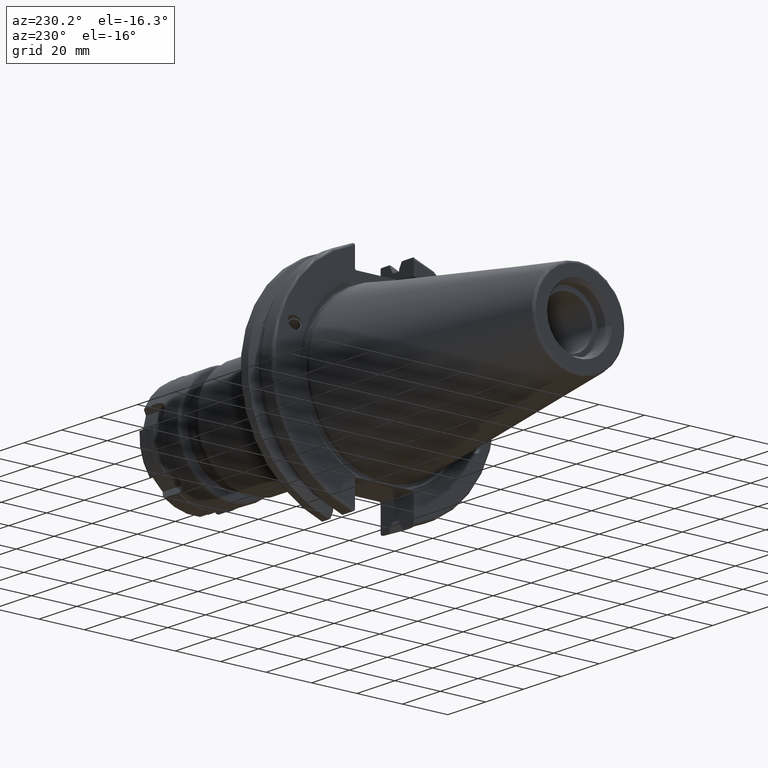
[diagram: clean part render]
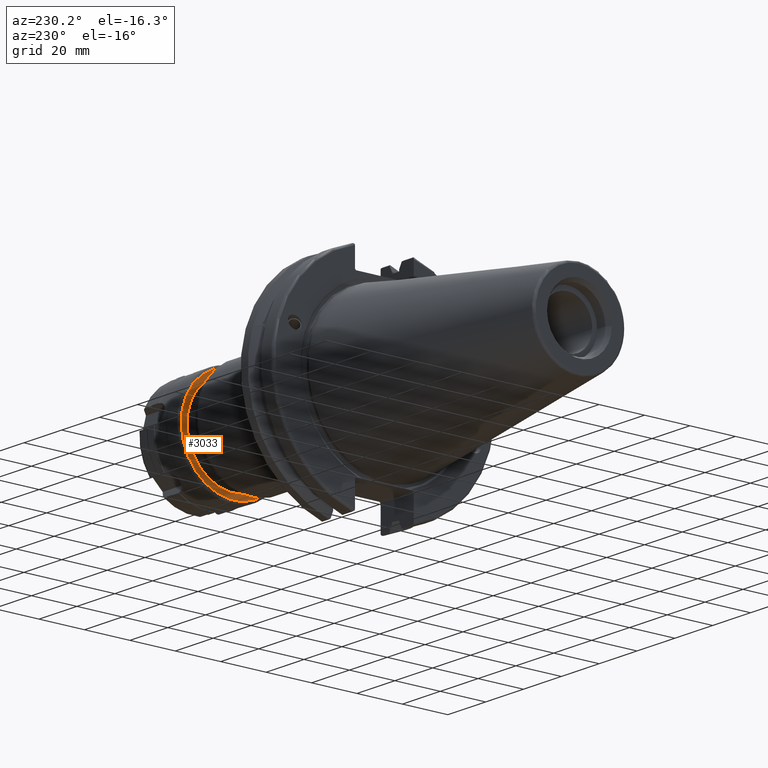
[diagram: same view with one face highlighted and labeled with its STEP entity id]
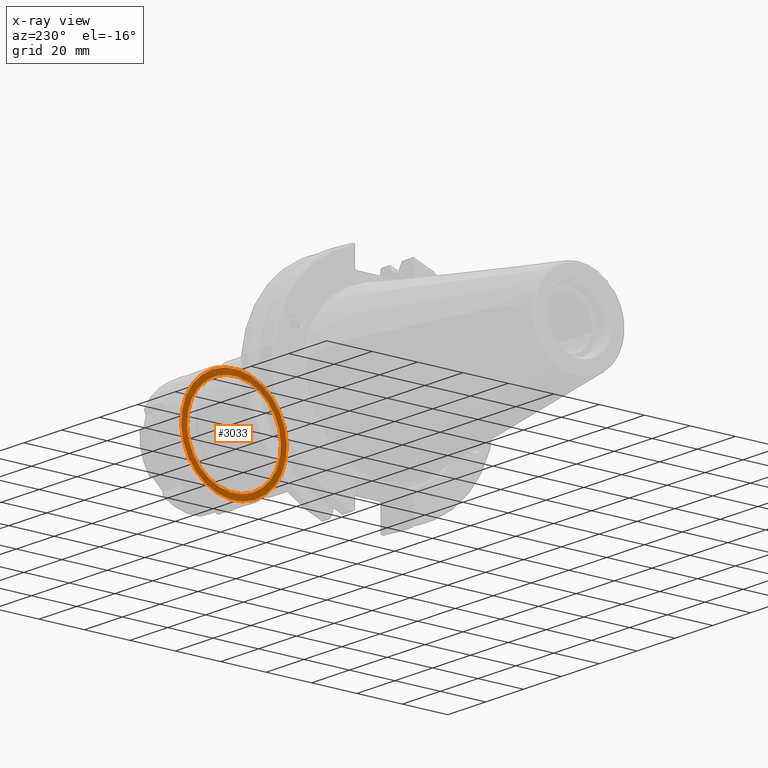
[diagram: x-ray of the same camera — body ghosted, the highlighted face saturated]
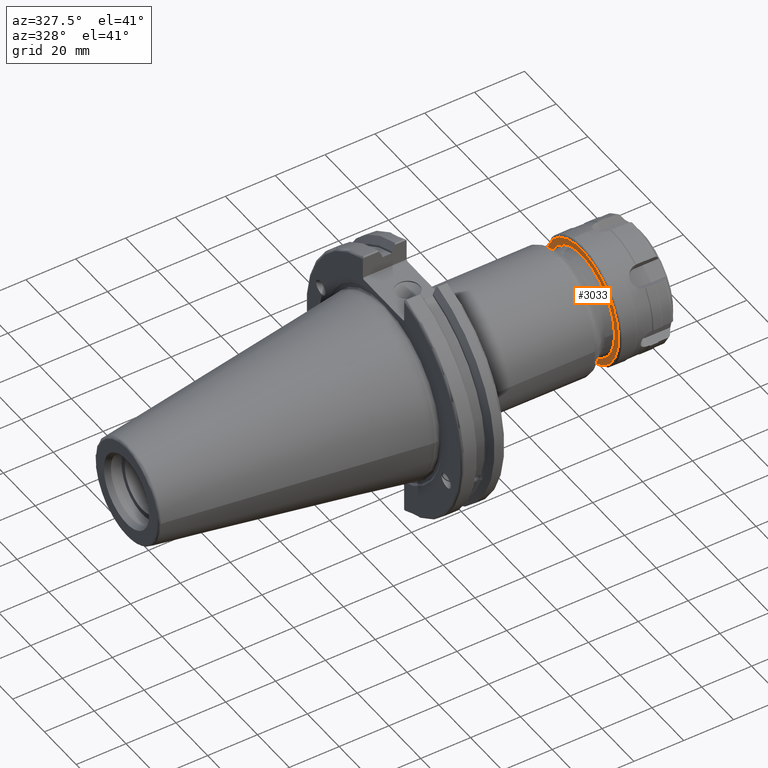
[diagram: same view with one face highlighted and labeled with its STEP entity id]
A machine part, auxiliary view. The second image highlights one B-rep face of the part: STEP entity #3033.
The next image is the same camera in x-ray: the body ghosted, the highlighted face saturated — about 43% of this face is hidden behind the body in this view.
A second angle (auxiliary view) of the same face is appended — the face is thin or edge-on in the first view.
In plain terms, the highlighted planar face has unit normal (-1, 0, 0).
Its self-contained STEP definition (entity closure, byte-faithful):
#593=FACE_BOUND('',#992,.T.);
#655=PLANE('',#3403);
#804=FACE_OUTER_BOUND('',#991,.T.);
#991=EDGE_LOOP('',(#2745));
#992=EDGE_LOOP('',(#2746));
#1153=CIRCLE('',#3399,20.7);
#1157=CIRCLE('',#3404,23.25);
#1466=VERTEX_POINT('',#5914);
#1469=VERTEX_POINT('',#5922);
#1902=EDGE_CURVE('',#1466,#1466,#1153,.T.);
#1906=EDGE_CURVE('',#1469,#1469,#1157,.T.);
#2745=ORIENTED_EDGE('',*,*,#1906,.F.);
#2746=ORIENTED_EDGE('',*,*,#1902,.F.);
#3033=ADVANCED_FACE('',(#804,#593),#655,.T.);
#3399=AXIS2_PLACEMENT_3D('',#5915,#4173,#4174);
#3403=AXIS2_PLACEMENT_3D('',#5921,#4181,#4182);
#3404=AXIS2_PLACEMENT_3D('',#5923,#4183,#4184);
#4173=DIRECTION('center_axis',(-1.,0.,0.));
#4174=DIRECTION('ref_axis',(0.,-1.,1.83697019872103E-16));
#4181=DIRECTION('center_axis',(-1.,0.,0.));
#4182=DIRECTION('ref_axis',(0.,0.,1.));
#4183=DIRECTION('center_axis',(1.,0.,0.));
#4184=DIRECTION('ref_axis',(0.,-1.,1.83697019872103E-16));
#5914=CARTESIAN_POINT('',(0.,-2.53501887423502E-15,20.7));
#5915=CARTESIAN_POINT('Origin',(0.,0.,0.));
#5921=CARTESIAN_POINT('Origin',(0.,24.25,0.));
#5922=CARTESIAN_POINT('',(0.,-2.8473038080176E-15,23.25));
#5923=CARTESIAN_POINT('Origin',(0.,0.,0.));